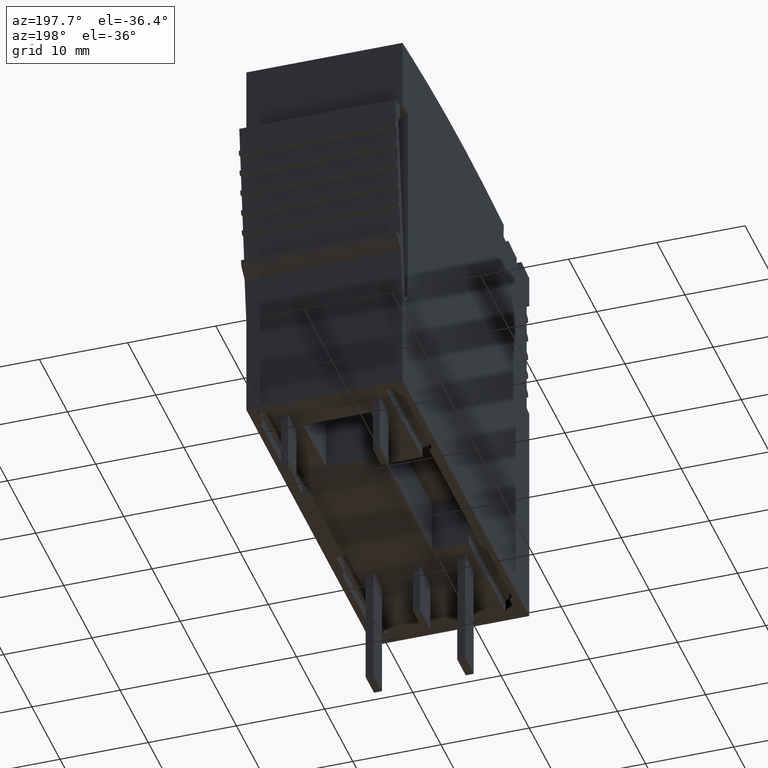
[diagram: clean part render]
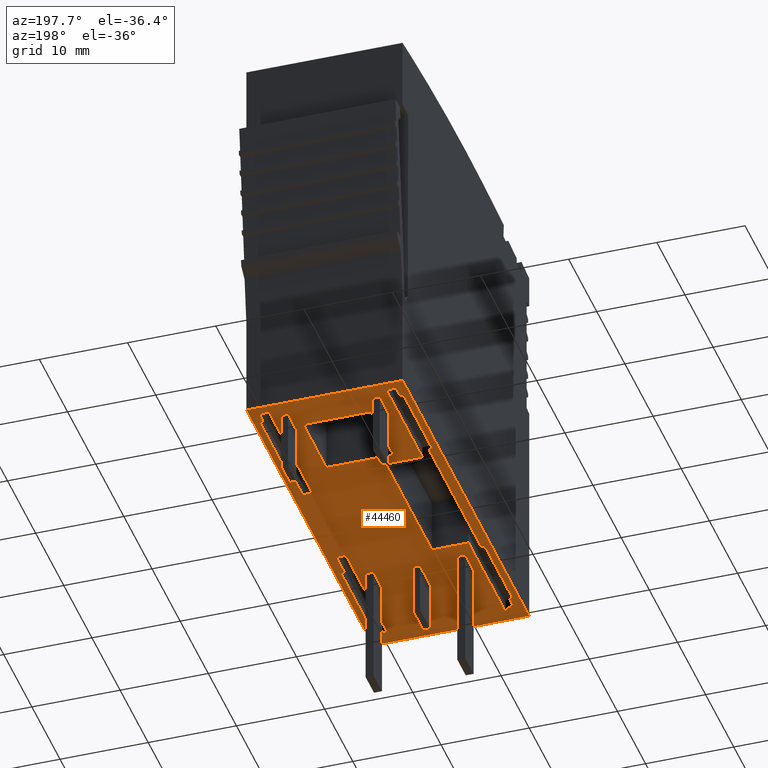
[diagram: same view with one face highlighted and labeled with its STEP entity id]
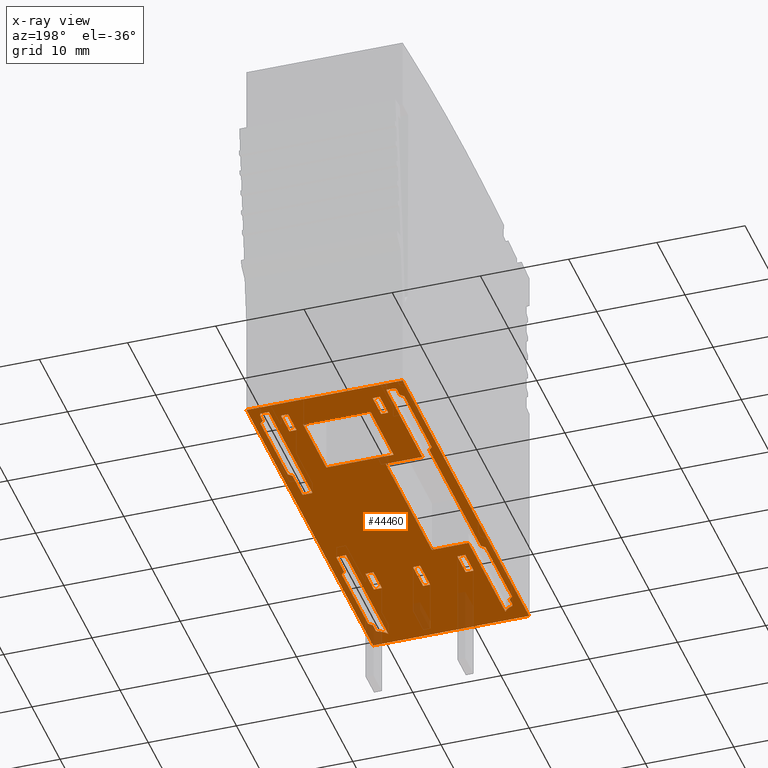
[diagram: x-ray of the same camera — body ghosted, the highlighted face saturated]
A machine part, auxiliary view. The second image highlights one B-rep face of the part: STEP entity #44460.
The next image is the same camera in x-ray: the body ghosted, the highlighted face saturated — about 4% of this face is hidden behind the body in this view.
In plain terms, the highlighted planar face has unit normal (0, -0, 1).
Its self-contained STEP definition (entity closure, byte-faithful):
#6680=CARTESIAN_POINT('',(161.653020213459,37.1748719559853,
7.27500000328213));
#6690=VERTEX_POINT('',#6680);
#6720=CARTESIAN_POINT('',(172.092709102795,37.1748719559853,
7.27500000328213));
#6730=DIRECTION('',(-1.,-3.69937789580126E-23,1.50463276905253E-36));
#6740=VECTOR('',#6730,1.);
#6750=LINE('',#6720,#6740);
#6760=CARTESIAN_POINT('',(116.653020264512,37.1748719559853,
7.27500000328213));
#6770=VERTEX_POINT('',#6760);
#6780=EDGE_CURVE('',#6690,#6770,#6750,.T.);
#7530=CARTESIAN_POINT('',(161.653020212681,37.1748719559853,
-10.4249999990464));
#7540=VERTEX_POINT('',#7530);
#7570=CARTESIAN_POINT('',(161.653019965926,37.1748719559853,
0.425000002241946));
#7580=DIRECTION('',(-4.39608349722675E-11,4.7506517970926E-33,-1.));
#7590=VECTOR('',#7580,1.);
#7600=LINE('',#7570,#7590);
#7610=EDGE_CURVE('',#6690,#7540,#7600,.T.);
#7830=CARTESIAN_POINT('',(156.552985284806,37.1748719559853,
-7.17500000591976));
#7840=VERTEX_POINT('',#7830);
#7920=CARTESIAN_POINT('',(159.552985284806,37.1748719559853,
-7.17500000578788));
#7930=VERTEX_POINT('',#7920);
#7960=CARTESIAN_POINT('',(172.092709102795,37.1748719559781,
-7.17500000523662));
#7970=DIRECTION('',(1.,-3.16640812868902E-27,4.39608349722675E-11));
#7980=VECTOR('',#7970,1.);
#7990=LINE('',#7960,#7980);
#8000=EDGE_CURVE('',#7840,#7930,#7990,.T.);
#14750=CARTESIAN_POINT('',(116.653020263734,37.1748719559853,
-10.4249999970682));
#14760=VERTEX_POINT('',#14750);
#14790=CARTESIAN_POINT('',(172.092709102795,37.1748719559853,
-10.4249999995053));
#14800=DIRECTION('',(1.,3.69937789580126E-23,-4.39608349722675E-11));
#14810=VECTOR('',#14800,1.);
#14820=LINE('',#14790,#14810);
#14830=EDGE_CURVE('',#14760,#7540,#14820,.T.);
#39240=CARTESIAN_POINT('',(116.653020264211,37.1748719559853,
0.425000002241946));
#39250=DIRECTION('',(-4.39608349722675E-11,4.7506517970926E-33,-1.));
#39260=VECTOR('',#39250,1.);
#39270=LINE('',#39240,#39260);
#39280=EDGE_CURVE('',#6770,#14760,#39270,.T.);
#39400=CARTESIAN_POINT('',(117.366014010813,37.1748719559853,
-0.480834073818859));
#39410=DIRECTION('',(-3.69937789580126E-23,1.,3.68062728672421E-33));
#39420=DIRECTION('',(-1.,-3.69937789580126E-23,1.50463276905253E-36));
#39430=AXIS2_PLACEMENT_3D('',#39400,#39410,#39420);
#39440=PLANE('',#39430);
#39450=CARTESIAN_POINT('',(172.092709102795,37.1748719559781,
-1.17500002451476));
#39460=DIRECTION('',(-1.,3.16640812868902E-27,-4.39608349722675E-11));
#39470=VECTOR('',#39460,1.);
#39480=LINE('',#39450,#39470);
#39490=CARTESIAN_POINT('',(128.953020167378,37.1748719559853,
-1.17500002641121));
#39500=VERTEX_POINT('',#39490);
#39510=CARTESIAN_POINT('',(125.353020167258,37.1748719559853,
-1.17500002656947));
#39520=VERTEX_POINT('',#39510);
#39530=EDGE_CURVE('',#39500,#39520,#39480,.T.);
#39540=ORIENTED_EDGE('',*,*,#39530,.F.);
#39550=CARTESIAN_POINT('',(125.353020167258,37.1748719559781,
0.425000002241946));
#39560=DIRECTION('',(-1.50463276905253E-36,2.054199813478E-33,-1.));
#39570=VECTOR('',#39560,1.);
#39580=LINE('',#39550,#39570);
#39590=CARTESIAN_POINT('',(125.353020167258,37.1748719559853,
-1.97500002673556));
#39600=VERTEX_POINT('',#39590);
#39610=EDGE_CURVE('',#39520,#39600,#39580,.T.);
#39620=ORIENTED_EDGE('',*,*,#39610,.F.);
#39630=CARTESIAN_POINT('',(172.092709102795,37.1748719559781,
-1.97500002468085));
#39640=DIRECTION('',(1.,-3.16640812868902E-27,4.39608349722675E-11));
#39650=VECTOR('',#39640,1.);
#39660=LINE('',#39630,#39650);
#39670=CARTESIAN_POINT('',(128.953020167378,37.1748719559853,
-1.9750000265773));
#39680=VERTEX_POINT('',#39670);
#39690=EDGE_CURVE('',#39600,#39680,#39660,.T.);
#39700=ORIENTED_EDGE('',*,*,#39690,.F.);
#39710=CARTESIAN_POINT('',(128.953020167378,37.1748719559781,
0.425000002241945));
#39720=DIRECTION('',(-1.50463276905253E-36,2.054199813478E-33,-1.));
#39730=VECTOR('',#39720,1.);
#39740=LINE('',#39710,#39730);
#39750=EDGE_CURVE('',#39500,#39680,#39740,.T.);
#39760=ORIENTED_EDGE('',*,*,#39750,.T.);
#39770=EDGE_LOOP('',(#39760,#39700,#39620,#39540));
#39780=FACE_BOUND('',#39770,.T.);
#39790=CARTESIAN_POINT('',(187.092709050771,37.1748719559853,
-6.32500000139883));
#39800=DIRECTION('',(1.,3.69940260763232E-23,-1.50463276905253E-36));
#39810=VECTOR('',#39800,1.);
#39820=LINE('',#39790,#39810);
#39830=CARTESIAN_POINT('',(126.35263243255,37.1748719559853,
-6.32500000139883));
#39840=VERTEX_POINT('',#39830);
#39850=CARTESIAN_POINT('',(129.352632431285,37.1748719559853,
-6.32500000139883));
#39860=VERTEX_POINT('',#39850);
#39870=EDGE_CURVE('',#39840,#39860,#39820,.T.);
#39880=ORIENTED_EDGE('',*,*,#39870,.T.);
#39890=CARTESIAN_POINT('',(126.35263243255,37.1748719559853,
-8.37500000441066));
#39900=DIRECTION('',(1.50463276905253E-36,5.56415284849829E-34,1.));
#39910=VECTOR('',#39900,1.);
#39920=LINE('',#39890,#39910);
#39930=CARTESIAN_POINT('',(126.35263243255,37.1748719559853,
-7.22500000101934));
#39940=VERTEX_POINT('',#39930);
#39950=EDGE_CURVE('',#39940,#39840,#39920,.T.);
#39960=ORIENTED_EDGE('',*,*,#39950,.T.);
#39970=CARTESIAN_POINT('',(187.09270905081,37.1748719559853,
-7.22500000101934));
#39980=DIRECTION('',(-1.,-3.69940260763232E-23,1.50463276905253E-36));
#39990=VECTOR('',#39980,1.);
#40000=LINE('',#39970,#39990);
#40010=CARTESIAN_POINT('',(129.352632431285,37.1748719559853,
-7.22500000101934));
#40020=VERTEX_POINT('',#40010);
#40030=EDGE_CURVE('',#40020,#39940,#40000,.T.);
#40040=ORIENTED_EDGE('',*,*,#40030,.T.);
#40050=CARTESIAN_POINT('',(129.352632431285,37.1748719559853,
-8.37500000427877));
#40060=DIRECTION('',(-1.50463276905253E-36,-5.56415284849829E-34,-1.));
#40070=VECTOR('',#40060,1.);
#40080=LINE('',#40050,#40070);
#40090=EDGE_CURVE('',#39860,#40020,#40080,.T.);
#40100=ORIENTED_EDGE('',*,*,#40090,.T.);
#40110=EDGE_LOOP('',(#40100,#40040,#39960,#39880));
#40120=FACE_BOUND('',#40110,.T.);
#40130=CARTESIAN_POINT('',(126.35263243255,37.1748719559853,
-8.37500000441066));
#40140=DIRECTION('',(1.50463276905253E-36,5.56415284849829E-34,1.));
#40150=VECTOR('',#40140,1.);
#40160=LINE('',#40130,#40150);
#40170=CARTESIAN_POINT('',(126.35263243255,37.1748719559853,
3.17499999459549));
#40180=VERTEX_POINT('',#40170);
#40190=CARTESIAN_POINT('',(126.35263243255,37.1748719559853,
4.07499999421601));
#40200=VERTEX_POINT('',#40190);
#40210=EDGE_CURVE('',#40180,#40200,#40160,.T.);
#40220=ORIENTED_EDGE('',*,*,#40210,.T.);
#40230=CARTESIAN_POINT('',(187.092709050353,37.1748719559853,
3.17499999459549));
#40240=DIRECTION('',(-1.,-3.69940260763232E-23,1.50463276905253E-36));
#40250=VECTOR('',#40240,1.);
#40260=LINE('',#40230,#40250);
#40270=CARTESIAN_POINT('',(129.352632431294,37.1748719559853,
3.17499999459549));
#40280=VERTEX_POINT('',#40270);
#40290=EDGE_CURVE('',#40280,#40180,#40260,.T.);
#40300=ORIENTED_EDGE('',*,*,#40290,.T.);
#40310=CARTESIAN_POINT('',(129.352632431294,37.1748719559853,
-8.37500000427877));
#40320=DIRECTION('',(-1.50463276905253E-36,-5.56415284849829E-34,-1.));
#40330=VECTOR('',#40320,1.);
#40340=LINE('',#40310,#40330);
#40350=CARTESIAN_POINT('',(129.352632431294,37.1748719559853,
4.07499999421601));
#40360=VERTEX_POINT('',#40350);
#40370=EDGE_CURVE('',#40360,#40280,#40340,.T.);
#40380=ORIENTED_EDGE('',*,*,#40370,.T.);
#40390=CARTESIAN_POINT('',(187.092709050314,37.1748719559853,
4.07499999421601));
#40400=DIRECTION('',(1.,3.69940260763232E-23,-1.50463276905253E-36));
#40410=VECTOR('',#40400,1.);
#40420=LINE('',#40390,#40410);
#40430=EDGE_CURVE('',#40200,#40360,#40420,.T.);
#40440=ORIENTED_EDGE('',*,*,#40430,.T.);
#40450=EDGE_LOOP('',(#40440,#40380,#40300,#40220));
#40460=FACE_BOUND('',#40450,.T.);
#40470=CARTESIAN_POINT('',(172.092709102795,37.1748719559781,
4.024999992235));
#40480=DIRECTION('',(-1.,3.16640812868902E-27,-4.39608349722675E-11));
#40490=VECTOR('',#40480,1.);
#40500=LINE('',#40470,#40490);
#40510=CARTESIAN_POINT('',(159.552985284841,37.1748719559853,
4.02499999168374));
#40520=VERTEX_POINT('',#40510);
#40530=CARTESIAN_POINT('',(156.552985284841,37.1748719559853,
4.02499999155186));
#40540=VERTEX_POINT('',#40530);
#40550=EDGE_CURVE('',#40520,#40540,#40500,.T.);
#40560=ORIENTED_EDGE('',*,*,#40550,.F.);
#40570=CARTESIAN_POINT('',(156.552985284841,37.1748719559781,
0.425000002241946));
#40580=DIRECTION('',(-1.50463276905253E-36,2.054199813478E-33,-1.));
#40590=VECTOR('',#40580,1.);
#40600=LINE('',#40570,#40590);
#40610=CARTESIAN_POINT('',(156.552985284841,37.1748719559853,
3.22499999138577));
#40620=VERTEX_POINT('',#40610);
#40630=EDGE_CURVE('',#40540,#40620,#40600,.T.);
#40640=ORIENTED_EDGE('',*,*,#40630,.F.);
#40650=CARTESIAN_POINT('',(172.092709102795,37.1748719559781,
3.22499999206891));
#40660=DIRECTION('',(1.,-3.16640812868902E-27,4.39608349722675E-11));
#40670=VECTOR('',#40660,1.);
#40680=LINE('',#40650,#40670);
#40690=CARTESIAN_POINT('',(159.552985284841,37.1748719559853,
3.22499999151765));
#40700=VERTEX_POINT('',#40690);
#40710=EDGE_CURVE('',#40620,#40700,#40680,.T.);
#40720=ORIENTED_EDGE('',*,*,#40710,.F.);
#40730=CARTESIAN_POINT('',(159.552985284841,37.1748719559781,
0.425000002241945));
#40740=DIRECTION('',(-1.50463276905253E-36,2.054199813478E-33,-1.));
#40750=VECTOR('',#40740,1.);
#40760=LINE('',#40730,#40750);
#40770=EDGE_CURVE('',#40520,#40700,#40760,.T.);
#40780=ORIENTED_EDGE('',*,*,#40770,.T.);
#40790=EDGE_LOOP('',(#40780,#40720,#40640,#40560));
#40800=FACE_BOUND('',#40790,.T.);
#40810=CARTESIAN_POINT('',(138.979467755507,37.1748719559853,
0.425000002241945));
#40820=DIRECTION('',(0.707106781155467,2.61585519662863E-23,
-0.707106781217628));
#40830=VECTOR('',#40820,1.);
#40840=LINE('',#40810,#40830);
#40850=CARTESIAN_POINT('',(148.729467756643,37.1748719559853,
-9.32499999975137));
#40860=VERTEX_POINT('',#40850);
#40870=CARTESIAN_POINT('',(149.12946781494,37.1748719559853,
-9.72500005808338));
#40880=VERTEX_POINT('',#40870);
#40890=EDGE_CURVE('',#40860,#40880,#40840,.T.);
#40900=ORIENTED_EDGE('',*,*,#40890,.F.);
#40910=CARTESIAN_POINT('',(172.092709102795,37.1748719559853,
-9.72500005909286));
#40920=DIRECTION('',(1.,3.69937789580126E-23,-4.39607794611163E-11));
#40930=VECTOR('',#40920,1.);
#40940=LINE('',#40910,#40930);
#40950=CARTESIAN_POINT('',(158.853020065334,37.1748719559853,
-9.72500005851084));
#40960=VERTEX_POINT('',#40950);
#40970=EDGE_CURVE('',#40880,#40960,#40940,.T.);
#40980=ORIENTED_EDGE('',*,*,#40970,.F.);
#40990=CARTESIAN_POINT('',(172.092709102795,37.1748719559853,
3.51468897778554));
#41000=DIRECTION('',(0.707106781217637,2.61585519595679E-23,
0.707106781155458));
#41010=VECTOR('',#41000,1.);
#41020=LINE('',#40990,#41010);
#41030=CARTESIAN_POINT('',(159.253020123666,37.1748719559853,
-9.32500000021399));
#41040=VERTEX_POINT('',#41030);
#41050=EDGE_CURVE('',#40960,#41040,#41020,.T.);
#41060=ORIENTED_EDGE('',*,*,#41050,.F.);
#41070=CARTESIAN_POINT('',(172.092709102795,37.1748719559853,
-9.32500000077843));
#41080=DIRECTION('',(1.,3.69937789580126E-23,-4.39619140185016E-11));
#41090=VECTOR('',#41080,1.);
#41100=LINE('',#41070,#41090);
#41110=CARTESIAN_POINT('',(160.253020123245,37.1748719559853,
-9.32500000025794));
#41120=VERTEX_POINT('',#41110);
#41130=EDGE_CURVE('',#41040,#41120,#41100,.T.);
#41140=ORIENTED_EDGE('',*,*,#41130,.F.);
#41150=CARTESIAN_POINT('',(160.253020123258,37.1748719559853,
-9.02500000038443));
#41160=DIRECTION('',(-3.69937789592601E-23,1.,1.92592928276412E-32));
#41170=DIRECTION('',(-1.,-3.69937789580126E-23,4.39607794611163E-11));
#41180=AXIS2_PLACEMENT_3D('',#41150,#41160,#41170);
#41190=CIRCLE('',#41180,0.299999999873505);
#41200=CARTESIAN_POINT('',(160.553020123131,37.1748719559853,
-9.02500000039762));
#41210=VERTEX_POINT('',#41200);
#41220=EDGE_CURVE('',#41210,#41120,#41190,.T.);
#41230=ORIENTED_EDGE('',*,*,#41220,.T.);
#41240=CARTESIAN_POINT('',(160.553020123547,37.1748719559853,
0.425000002241945));
#41250=DIRECTION('',(4.39607794611163E-11,-4.75065385065986E-33,1.));
#41260=VECTOR('',#41250,1.);
#41270=LINE('',#41240,#41260);
#41280=CARTESIAN_POINT('',(160.553020123167,37.1748719559853,
-8.22500000103832));
#41290=VERTEX_POINT('',#41280);
#41300=EDGE_CURVE('',#41210,#41290,#41270,.T.);
#41310=ORIENTED_EDGE('',*,*,#41300,.F.);
#41320=CARTESIAN_POINT('',(172.092709102795,37.1748719559853,
-8.22500000154561));
#41330=DIRECTION('',(-1.,-3.69937789580126E-23,4.39600308107254E-11));
#41340=VECTOR('',#41330,1.);
#41350=LINE('',#41320,#41340);
#41360=CARTESIAN_POINT('',(147.725976434108,37.1748719559853,
-8.22500000047445));
#41370=VERTEX_POINT('',#41360);
#41380=EDGE_CURVE('',#41290,#41370,#41350,.T.);
#41390=ORIENTED_EDGE('',*,*,#41380,.F.);
#41400=CARTESIAN_POINT('',(147.725976434488,37.1748719559853,
0.425000002241945));
#41410=DIRECTION('',(4.39607794611163E-11,-4.75065385065986E-33,1.));
#41420=VECTOR('',#41410,1.);
#41430=LINE('',#41400,#41420);
#41440=CARTESIAN_POINT('',(147.72597643429,37.1748719559853,
-4.08186020336936));
#41450=VERTEX_POINT('',#41440);
#41460=EDGE_CURVE('',#41370,#41450,#41430,.T.);
#41470=ORIENTED_EDGE('',*,*,#41460,.F.);
#41480=CARTESIAN_POINT('',(172.092709102795,37.1748719559853,
-4.08186020444055));
#41490=DIRECTION('',(-1.,-3.69937789580126E-23,4.39607849403477E-11));
#41500=VECTOR('',#41490,1.);
#41510=LINE('',#41480,#41500);
#41520=CARTESIAN_POINT('',(131.320641431162,37.1748719559853,
-4.08186020264817));
#41530=VERTEX_POINT('',#41520);
#41540=EDGE_CURVE('',#41450,#41530,#41510,.T.);
#41550=ORIENTED_EDGE('',*,*,#41540,.F.);
#41560=CARTESIAN_POINT('',(131.32064143136,37.1748719559853,
0.425000002241946));
#41570=DIRECTION('',(-4.39607794611163E-11,4.75065385065986E-33,-1.));
#41580=VECTOR('',#41570,1.);
#41590=LINE('',#41560,#41580);
#41600=CARTESIAN_POINT('',(131.32064143098,37.1748719559853,
-8.22499999975327));
#41610=VERTEX_POINT('',#41600);
#41620=EDGE_CURVE('',#41530,#41610,#41590,.T.);
#41630=ORIENTED_EDGE('',*,*,#41620,.F.);
#41640=CARTESIAN_POINT('',(172.092709102795,37.1748719559853,
-8.22500000154561));
#41650=DIRECTION('',(-1.,-3.69937789580126E-23,4.39600308107254E-11));
#41660=VECTOR('',#41650,1.);
#41670=LINE('',#41640,#41660);
#41680=CARTESIAN_POINT('',(118.176853547807,37.1748719559853,
-8.22499999917546));
#41690=VERTEX_POINT('',#41680);
#41700=EDGE_CURVE('',#41610,#41690,#41670,.T.);
#41710=ORIENTED_EDGE('',*,*,#41700,.F.);
#41720=CARTESIAN_POINT('',(117.479985550894,37.1748719559853,
-9.52499999650033));
#41730=DIRECTION('',(-3.69937789592601E-23,1.,1.92592928276412E-32));
#41740=DIRECTION('',(-4.39607794611163E-11,2.05434930919918E-33,-1.));
#41750=AXIS2_PLACEMENT_3D('',#41720,#41730,#41740);
#41760=CIRCLE('',#41750,1.47499999937807);
#41770=CARTESIAN_POINT('',(118.895256055662,37.1748719559853,
-9.10950704048117));
#41780=VERTEX_POINT('',#41770);
#41790=EDGE_CURVE('',#41690,#41780,#41760,.T.);
#41800=ORIENTED_EDGE('',*,*,#41790,.F.);
#41810=CARTESIAN_POINT('',(119.18310768375,37.1748719559853,
-9.02499999857897));
#41820=DIRECTION('',(-3.69937789592601E-23,1.,1.92592928276412E-32));
#41830=DIRECTION('',(-1.,-3.69937789580126E-23,4.39607794611163E-11));
#41840=AXIS2_PLACEMENT_3D('',#41810,#41820,#41830);
#41850=CIRCLE('',#41840,0.299999999873505);
#41860=CARTESIAN_POINT('',(119.183107683737,37.1748719559853,
-9.32499999845246));
#41870=VERTEX_POINT('',#41860);
#41880=EDGE_CURVE('',#41870,#41780,#41850,.T.);
#41890=ORIENTED_EDGE('',*,*,#41880,.T.);
#41900=CARTESIAN_POINT('',(172.092709102795,37.1748719559853,
-9.32500000077847));
#41910=DIRECTION('',(1.,3.69937789580126E-23,-4.39619140185016E-11));
#41920=VECTOR('',#41910,1.);
#41930=LINE('',#41900,#41920);
#41940=CARTESIAN_POINT('',(120.183107683318,37.1748719559853,
-9.32499999849642));
#41950=VERTEX_POINT('',#41940);
#41960=EDGE_CURVE('',#41870,#41950,#41930,.T.);
#41970=ORIENTED_EDGE('',*,*,#41960,.F.);
#41980=CARTESIAN_POINT('',(110.433107683436,37.1748719559853,
0.425000002241945));
#41990=DIRECTION('',(0.707106781155467,2.61585519662863E-23,
-0.707106781217628));
#42000=VECTOR('',#41990,1.);
#42010=LINE('',#41980,#42000);
#42020=CARTESIAN_POINT('',(120.583107683131,37.1748719559853,
-9.72499999834541));
#42030=VERTEX_POINT('',#42020);
#42040=EDGE_CURVE('',#41950,#42030,#42010,.T.);
#42050=ORIENTED_EDGE('',*,*,#42040,.F.);
#42060=CARTESIAN_POINT('',(172.092709102795,37.1748719559853,
-9.7250000006098));
#42070=DIRECTION('',(1.,3.69937789580126E-23,-4.39607794611163E-11));
#42080=VECTOR('',#42070,1.);
#42090=LINE('',#42060,#42080);
#42100=CARTESIAN_POINT('',(129.977831994387,37.1748719559853,
-9.7249999987584));
#42110=VERTEX_POINT('',#42100);
#42120=EDGE_CURVE('',#42030,#42110,#42090,.T.);
#42130=ORIENTED_EDGE('',*,*,#42120,.F.);
#42140=CARTESIAN_POINT('',(172.092709102795,37.1748719559853,
32.3898771059462));
#42150=DIRECTION('',(0.707106781217637,2.61585519595679E-23,
0.707106781155458));
#42160=VECTOR('',#42150,1.);
#42170=LINE('',#42140,#42160);
#42180=CARTESIAN_POINT('',(130.377831994236,37.1748719559853,
-9.3249999989446));
#42190=VERTEX_POINT('',#42180);
#42200=EDGE_CURVE('',#42110,#42190,#42170,.T.);
#42210=ORIENTED_EDGE('',*,*,#42200,.F.);
#42220=CARTESIAN_POINT('',(172.092709102795,37.1748719559853,
-9.32500000077847));
#42230=DIRECTION('',(1.,3.69937789580126E-23,-4.39619140185016E-11));
#42240=VECTOR('',#42230,1.);
#42250=LINE('',#42220,#42240);
#42260=EDGE_CURVE('',#42190,#40860,#42250,.T.);
#42270=ORIENTED_EDGE('',*,*,#42260,.F.);
#42280=EDGE_LOOP('',(#42270,#42210,#42130,#42050,#41970,#41890,#41800,
#41710,#41630,#41550,#41470,#41390,#41310,#41230,#41140,#41060,#40980,
#40900));
#42290=FACE_BOUND('',#42280,.T.);
#42300=CARTESIAN_POINT('',(172.092709102795,37.1748719559853,
6.17499999269431));
#42310=DIRECTION('',(-1.,-3.69937789580126E-23,4.36539693282612E-11));
#42320=VECTOR('',#42310,1.);
#42330=LINE('',#42300,#42320);
#42340=CARTESIAN_POINT('',(133.203020462043,37.1748719559853,
6.174999994392));
#42350=VERTEX_POINT('',#42340);
#42360=CARTESIAN_POINT('',(130.377871906027,37.1748719559853,
6.17499999451533));
#42370=VERTEX_POINT('',#42360);
#42380=EDGE_CURVE('',#42350,#42370,#42330,.T.);
#42390=ORIENTED_EDGE('',*,*,#42380,.F.);
#42400=CARTESIAN_POINT('',(136.127871897795,37.1748719559853,
0.425000002241945));
#42410=DIRECTION('',(-0.707106781155467,-2.61585519662863E-23,
0.707106781217628));
#42420=VECTOR('',#42410,1.);
#42430=LINE('',#42400,#42420);
#42440=CARTESIAN_POINT('',(129.977871906209,37.1748719559853,
6.57499999436868));
#42450=VERTEX_POINT('',#42440);
#42460=EDGE_CURVE('',#42370,#42450,#42430,.T.);
#42470=ORIENTED_EDGE('',*,*,#42460,.F.);
#42480=CARTESIAN_POINT('',(172.092709102795,37.1748719559853,
6.57499999251728));
#42490=DIRECTION('',(-1.,-3.69937789580126E-23,4.39607794611163E-11));
#42500=VECTOR('',#42490,1.);
#42510=LINE('',#42480,#42500);
#42520=CARTESIAN_POINT('',(120.583107683848,37.1748719559853,
6.57499999478168));
#42530=VERTEX_POINT('',#42520);
#42540=EDGE_CURVE('',#42450,#42530,#42510,.T.);
#42550=ORIENTED_EDGE('',*,*,#42540,.F.);
#42560=CARTESIAN_POINT('',(172.092709102795,37.1748719559853,
58.0846014091991));
#42570=DIRECTION('',(-0.707106781217637,-2.61585519595679E-23,
-0.707106781155458));
#42580=VECTOR('',#42570,1.);
#42590=LINE('',#42560,#42580);
#42600=CARTESIAN_POINT('',(120.183107683999,37.1748719559853,
6.17499999496827));
#42610=VERTEX_POINT('',#42600);
#42620=EDGE_CURVE('',#42530,#42610,#42590,.T.);
#42630=ORIENTED_EDGE('',*,*,#42620,.F.);
#42640=CARTESIAN_POINT('',(172.092709102795,37.1748719559853,
6.17499999270224));
#42650=DIRECTION('',(-1.,-3.69937789580126E-23,4.36539693282612E-11));
#42660=VECTOR('',#42650,1.);
#42670=LINE('',#42640,#42660);
#42680=CARTESIAN_POINT('',(119.183107684421,37.1748719559853,
6.17499999501195));
#42690=VERTEX_POINT('',#42680);
#42700=EDGE_CURVE('',#42610,#42690,#42670,.T.);
#42710=ORIENTED_EDGE('',*,*,#42700,.F.);
#42720=CARTESIAN_POINT('',(119.183107684408,37.1748719559853,
5.87499999513845));
#42730=DIRECTION('',(-3.69937789592601E-23,1.,1.92592928276412E-32));
#42740=DIRECTION('',(-1.,-3.69937789580126E-23,4.39607794611163E-11));
#42750=AXIS2_PLACEMENT_3D('',#42720,#42730,#42740);
#42760=CIRCLE('',#42750,0.299999999873505);
#42770=CARTESIAN_POINT('',(118.895256056326,37.1748719559853,
5.95950703706434));
#42780=VERTEX_POINT('',#42770);
#42790=EDGE_CURVE('',#42780,#42690,#42760,.T.);
#42800=ORIENTED_EDGE('',*,*,#42790,.T.);
#42810=CARTESIAN_POINT('',(117.479985551593,37.1748719559853,
6.37499999319997));
#42820=DIRECTION('',(-3.69937789592601E-23,1.,1.92592928276412E-32));
#42830=DIRECTION('',(-1.,-3.69937789580126E-23,4.39607794611163E-11));
#42840=AXIS2_PLACEMENT_3D('',#42810,#42820,#42830);
#42850=CIRCLE('',#42840,1.47499999937807);
#42860=CARTESIAN_POINT('',(118.176597476997,37.1748719559853,
5.074862760616));
#42870=VERTEX_POINT('',#42860);
#42880=EDGE_CURVE('',#42780,#42870,#42850,.T.);
#42890=ORIENTED_EDGE('',*,*,#42880,.F.);
#42900=CARTESIAN_POINT('',(172.092709102795,37.1748719559853,
5.07486275824579));
#42910=DIRECTION('',(1.,3.69937789580126E-23,-4.39607664408501E-11));
#42920=VECTOR('',#42910,1.);
#42930=LINE('',#42900,#42920);
#42940=CARTESIAN_POINT('',(133.203020461995,37.1748719559853,
5.0748627599554));
#42950=VERTEX_POINT('',#42940);
#42960=EDGE_CURVE('',#42870,#42950,#42930,.T.);
#42970=ORIENTED_EDGE('',*,*,#42960,.F.);
#42980=CARTESIAN_POINT('',(133.20302046179,37.1748719559853,
0.425000002241945));
#42990=DIRECTION('',(4.39607794611163E-11,-4.75065385065986E-33,1.));
#43000=VECTOR('',#42990,1.);
#43010=LINE('',#42980,#43000);
#43020=EDGE_CURVE('',#42950,#42350,#43010,.T.);
#43030=ORIENTED_EDGE('',*,*,#43020,.F.);
#43040=EDGE_LOOP('',(#43030,#42970,#42890,#42800,#42710,#42630,#42550,
#42470,#42390));
#43050=FACE_BOUND('',#43040,.T.);
#43060=CARTESIAN_POINT('',(160.253020123273,37.1748719559853,
5.87499999333297));
#43070=DIRECTION('',(-3.69937789592601E-23,1.,1.92592928276412E-32));
#43080=DIRECTION('',(-1.,-3.69937789580126E-23,4.39607794611163E-11));
#43090=AXIS2_PLACEMENT_3D('',#43060,#43070,#43080);
#43100=CIRCLE('',#43090,0.299999999873505);
#43110=CARTESIAN_POINT('',(160.253020123286,37.1748719559853,
6.17499999320648));
#43120=VERTEX_POINT('',#43110);
#43130=CARTESIAN_POINT('',(160.553020123147,37.1748719559853,
5.87499999331979));
#43140=VERTEX_POINT('',#43130);
#43150=EDGE_CURVE('',#43120,#43140,#43100,.T.);
#43160=ORIENTED_EDGE('',*,*,#43150,.T.);
#43170=CARTESIAN_POINT('',(172.092709102795,37.1748719559853,
6.1749999926943));
#43180=DIRECTION('',(-1.,-3.69937789580126E-23,4.36539693282612E-11));
#43190=VECTOR('',#43180,1.);
#43200=LINE('',#43170,#43190);
#43210=CARTESIAN_POINT('',(159.253020123704,37.1748719559853,
6.1749999932548));
#43220=VERTEX_POINT('',#43210);
#43230=EDGE_CURVE('',#43120,#43220,#43200,.T.);
#43240=ORIENTED_EDGE('',*,*,#43230,.F.);
#43250=CARTESIAN_POINT('',(165.003020114211,37.1748719559853,
0.425000002241946));
#43260=DIRECTION('',(-0.707106781155467,-2.61585519662863E-23,
0.707106781217628));
#43270=VECTOR('',#43260,1.);
#43280=LINE('',#43250,#43270);
#43290=CARTESIAN_POINT('',(158.853020123894,37.1748719559853,
6.57499999309938));
#43300=VERTEX_POINT('',#43290);
#43310=EDGE_CURVE('',#43220,#43300,#43280,.T.);
#43320=ORIENTED_EDGE('',*,*,#43310,.F.);
#43330=CARTESIAN_POINT('',(172.092709102795,37.1748719559853,
6.57499999251735));
#43340=DIRECTION('',(-1.,-3.69937789580126E-23,4.39607794611163E-11));
#43350=VECTOR('',#43340,1.);
#43360=LINE('',#43330,#43350);
#43370=CARTESIAN_POINT('',(149.129469043999,37.1748719559853,
6.57499999352683));
#43380=VERTEX_POINT('',#43370);
#43390=EDGE_CURVE('',#43300,#43380,#43360,.T.);
#43400=ORIENTED_EDGE('',*,*,#43390,.F.);
#43410=CARTESIAN_POINT('',(172.092709102795,37.1748719559853,
29.5382400503033));
#43420=DIRECTION('',(-0.707106781217637,-2.61585519595679E-23,
-0.707106781155458));
#43430=VECTOR('',#43420,1.);
#43440=LINE('',#43410,#43430);
#43450=CARTESIAN_POINT('',(148.729469044151,37.1748719559853,
6.17499999371414));
#43460=VERTEX_POINT('',#43450);
#43470=EDGE_CURVE('',#43380,#43460,#43440,.T.);
#43480=ORIENTED_EDGE('',*,*,#43470,.F.);
#43490=CARTESIAN_POINT('',(172.092709102795,37.1748719559853,
6.17499999269424));
#43500=DIRECTION('',(-1.,-3.69937789580126E-23,4.36539693282612E-11));
#43510=VECTOR('',#43500,1.);
#43520=LINE('',#43490,#43510);
#43530=CARTESIAN_POINT('',(145.103020488468,37.1748719559853,
6.17499999387245));
#43540=VERTEX_POINT('',#43530);
#43550=EDGE_CURVE('',#43460,#43540,#43520,.T.);
#43560=ORIENTED_EDGE('',*,*,#43550,.F.);
#43570=CARTESIAN_POINT('',(145.103020488215,37.1748719559853,
0.425000002241946));
#43580=DIRECTION('',(-4.39607794611163E-11,4.75065385065986E-33,-1.));
#43590=VECTOR('',#43580,1.);
#43600=LINE('',#43570,#43590);
#43610=CARTESIAN_POINT('',(145.103020488419,37.1748719559853,
5.07486275943228));
#43620=VERTEX_POINT('',#43610);
#43630=EDGE_CURVE('',#43540,#43620,#43600,.T.);
#43640=ORIENTED_EDGE('',*,*,#43630,.F.);
#43650=CARTESIAN_POINT('',(172.092709102795,37.1748719559853,
5.07486275824579));
#43660=DIRECTION('',(1.,3.69937789580126E-23,-4.39607794611163E-11));
#43670=VECTOR('',#43660,1.);
#43680=LINE('',#43650,#43670);
#43690=CARTESIAN_POINT('',(160.553020123111,37.1748719559853,
5.07486275875308));
#43700=VERTEX_POINT('',#43690);
#43710=EDGE_CURVE('',#43620,#43700,#43680,.T.);
#43720=ORIENTED_EDGE('',*,*,#43710,.F.);
#43730=CARTESIAN_POINT('',(160.553020122907,37.1748719559853,
0.425000002241945));
#43740=DIRECTION('',(4.39607794611163E-11,-4.75065385065986E-33,1.));
#43750=VECTOR('',#43740,1.);
#43760=LINE('',#43730,#43750);
#43770=EDGE_CURVE('',#43700,#43140,#43760,.T.);
#43780=ORIENTED_EDGE('',*,*,#43770,.F.);
#43790=EDGE_LOOP('',(#43780,#43720,#43640,#43560,#43480,#43400,#43320,
#43240,#43160));
#43800=FACE_BOUND('',#43790,.T.);
#43810=CARTESIAN_POINT('',(172.092709102795,37.1748719559781,
-6.37500000507053));
#43820=DIRECTION('',(-1.,3.16640812868902E-27,-4.39608349722675E-11));
#43830=VECTOR('',#43820,1.);
#43840=LINE('',#43810,#43830);
#43850=CARTESIAN_POINT('',(159.552985284806,37.1748719559853,
-6.37500000562179));
#43860=VERTEX_POINT('',#43850);
#43870=CARTESIAN_POINT('',(156.552985284806,37.1748719559853,
-6.37500000575367));
#43880=VERTEX_POINT('',#43870);
#43890=EDGE_CURVE('',#43860,#43880,#43840,.T.);
#43900=ORIENTED_EDGE('',*,*,#43890,.F.);
#43910=CARTESIAN_POINT('',(156.552985284806,37.1748719559781,
0.425000002241946));
#43920=DIRECTION('',(-1.50463276905253E-36,2.054199813478E-33,-1.));
#43930=VECTOR('',#43920,1.);
#43940=LINE('',#43910,#43930);
#43950=EDGE_CURVE('',#43880,#7840,#43940,.T.);
#43960=ORIENTED_EDGE('',*,*,#43950,.F.);
#43970=ORIENTED_EDGE('',*,*,#8000,.F.);
#43980=CARTESIAN_POINT('',(159.552985284806,37.1748719559781,
0.425000002241945));
#43990=DIRECTION('',(-1.50463276905253E-36,2.054199813478E-33,-1.));
#44000=VECTOR('',#43990,1.);
#44010=LINE('',#43980,#44000);
#44020=EDGE_CURVE('',#43860,#7930,#44010,.T.);
#44030=ORIENTED_EDGE('',*,*,#44020,.T.);
#44040=EDGE_LOOP('',(#44030,#43970,#43960,#43900));
#44050=FACE_BOUND('',#44040,.T.);
#44060=CARTESIAN_POINT('',(172.092709102795,37.1748719559853,
2.22973038456989));
#44070=DIRECTION('',(-1.,-3.69937789580126E-23,1.50463276905253E-36));
#44080=VECTOR('',#44070,1.);
#44090=LINE('',#44060,#44080);
#44100=CARTESIAN_POINT('',(157.28471592408,37.1748719559853,
2.22973038456989));
#44110=VERTEX_POINT('',#44100);
#44120=CARTESIAN_POINT('',(149.075255148068,37.1748719559853,
2.22973038456989));
#44130=VERTEX_POINT('',#44120);
#44140=EDGE_CURVE('',#44110,#44130,#44090,.T.);
#44150=ORIENTED_EDGE('',*,*,#44140,.F.);
#44160=CARTESIAN_POINT('',(149.075255148068,37.1748719559853,
0.425000002241945));
#44170=DIRECTION('',(-1.50463276905253E-36,3.68062728672421E-33,-1.));
#44180=VECTOR('',#44170,1.);
#44190=LINE('',#44160,#44180);
#44200=CARTESIAN_POINT('',(149.075255148068,37.1748719559853,
-5.37973039099956));
#44210=VERTEX_POINT('',#44200);
#44220=EDGE_CURVE('',#44130,#44210,#44190,.T.);
#44230=ORIENTED_EDGE('',*,*,#44220,.F.);
#44240=CARTESIAN_POINT('',(172.092709102795,37.1748719559853,
-5.37973039099956));
#44250=DIRECTION('',(1.,3.69937789580126E-23,-1.50463276905253E-36));
#44260=VECTOR('',#44250,1.);
#44270=LINE('',#44240,#44260);
#44280=CARTESIAN_POINT('',(157.28471592408,37.1748719559853,
-5.37973039099956));
#44290=VERTEX_POINT('',#44280);
#44300=EDGE_CURVE('',#44210,#44290,#44270,.T.);
#44310=ORIENTED_EDGE('',*,*,#44300,.F.);
#44320=CARTESIAN_POINT('',(157.28471592408,37.1748719559853,
0.425000002241945));
#44330=DIRECTION('',(1.50463276905253E-36,-3.68062728672421E-33,1.));
#44340=VECTOR('',#44330,1.);
#44350=LINE('',#44320,#44340);
#44360=EDGE_CURVE('',#44290,#44110,#44350,.T.);
#44370=ORIENTED_EDGE('',*,*,#44360,.F.);
#44380=EDGE_LOOP('',(#44370,#44310,#44230,#44150));
#44390=FACE_BOUND('',#44380,.T.);
#44400=ORIENTED_EDGE('',*,*,#14830,.T.);
#44410=ORIENTED_EDGE('',*,*,#39280,.T.);
#44420=ORIENTED_EDGE('',*,*,#6780,.T.);
#44430=ORIENTED_EDGE('',*,*,#7610,.F.);
#44440=EDGE_LOOP('',(#44430,#44420,#44410,#44400));
#44450=FACE_OUTER_BOUND('',#44440,.T.);
#44460=ADVANCED_FACE('',(#39780,#40120,#40460,#40800,#42290,#43050,
#43800,#44050,#44390,#44450),#39440,.F.);